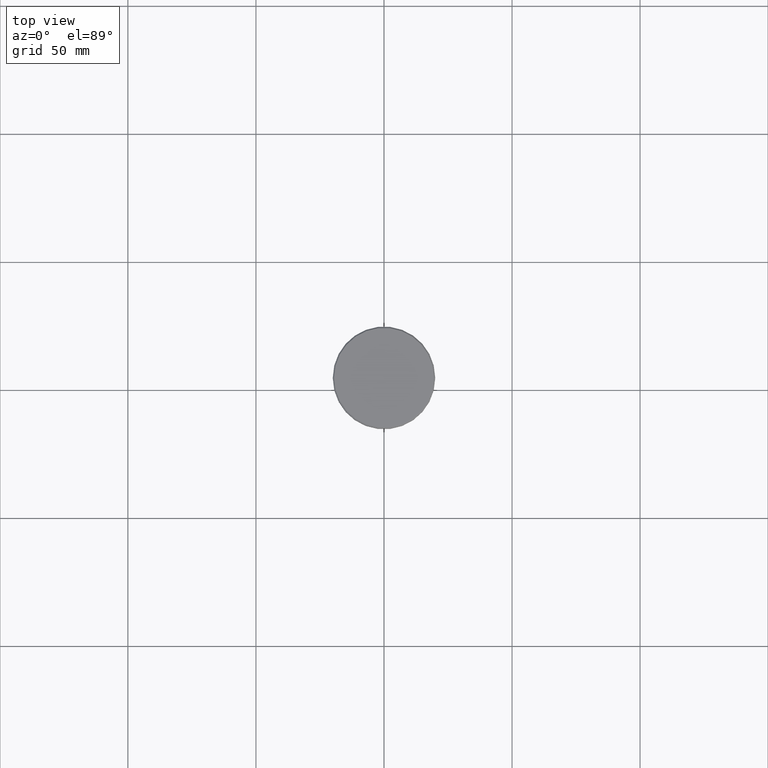
[diagram: clean part render]
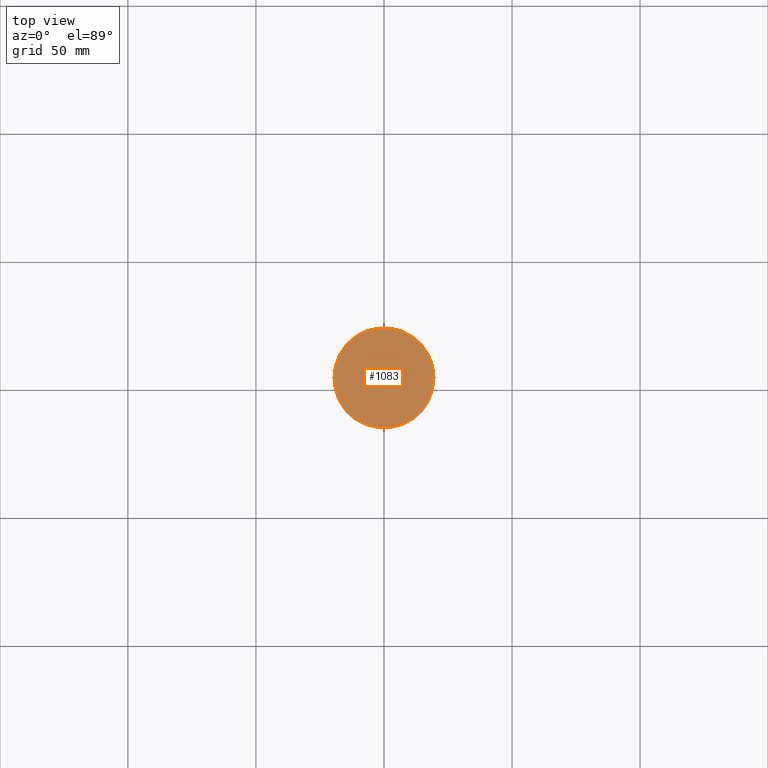
[diagram: same view with one face highlighted and labeled with its STEP entity id]
A machine part, top view. The second image highlights one B-rep face of the part: STEP entity #1083.
In plain terms, the highlighted planar face has unit normal (0, -0, 1).
Its self-contained STEP definition (entity closure, byte-faithful):
#133 = AXIS2_PLACEMENT_3D ( 'NONE', #723, #805, #909 ) ;
#140 = ORIENTED_EDGE ( 'NONE', *, *, #465, .T. ) ;
#172 = PLANE ( 'NONE',  #473 ) ;
#181 = AXIS2_PLACEMENT_3D ( 'NONE', #1053, #850, #1058 ) ;
#194 = CARTESIAN_POINT ( 'NONE',  ( 0.000000000000000000, 0.000000000000000000, 0.000000000000000000 ) ) ;
#197 = VERTEX_POINT ( 'NONE', #893 ) ;
#274 = VERTEX_POINT ( 'NONE', #989 ) ;
#465 = EDGE_CURVE ( 'NONE', #197, #274, #583, .T. ) ;
#473 = AXIS2_PLACEMENT_3D ( 'NONE', #194, #889, #1172 ) ;
#562 = EDGE_LOOP ( 'NONE', ( #824, #140 ) ) ;
#583 = CIRCLE ( 'NONE', #181, 19.50000000000004619 ) ;
#681 = CIRCLE ( 'NONE', #133, 19.50000000000004619 ) ;
#723 = CARTESIAN_POINT ( 'NONE',  ( 0.000000000000000000, 0.000000000000000000, 0.000000000000000000 ) ) ;
#794 = FACE_OUTER_BOUND ( 'NONE', #562, .T. ) ;
#805 = DIRECTION ( 'NONE',  ( -0.000000000000000000, -0.000000000000000000, 1.000000000000000000 ) ) ;
#824 = ORIENTED_EDGE ( 'NONE', *, *, #1028, .T. ) ;
#850 = DIRECTION ( 'NONE',  ( -0.000000000000000000, -0.000000000000000000, 1.000000000000000000 ) ) ;
#889 = DIRECTION ( 'NONE',  ( 0.000000000000000000, -0.000000000000000000, 1.000000000000000000 ) ) ;
#893 = CARTESIAN_POINT ( 'NONE',  ( 19.50000000000004619, 2.418677428316025487E-15, 0.000000000000000000 ) ) ;
#909 = DIRECTION ( 'NONE',  ( 1.000000000000000000, 0.000000000000000000, 0.000000000000000000 ) ) ;
#989 = CARTESIAN_POINT ( 'NONE',  ( -19.50000000000004619, 0.000000000000000000, 0.000000000000000000 ) ) ;
#1028 = EDGE_CURVE ( 'NONE', #274, #197, #681, .T. ) ;
#1053 = CARTESIAN_POINT ( 'NONE',  ( 0.000000000000000000, 0.000000000000000000, 0.000000000000000000 ) ) ;
#1058 = DIRECTION ( 'NONE',  ( 1.000000000000000000, 0.000000000000000000, 0.000000000000000000 ) ) ;
#1083 = ADVANCED_FACE ( 'NONE', ( #794 ), #172, .T. ) ;
#1172 = DIRECTION ( 'NONE',  ( 1.000000000000000000, 0.000000000000000000, 0.000000000000000000 ) ) ;